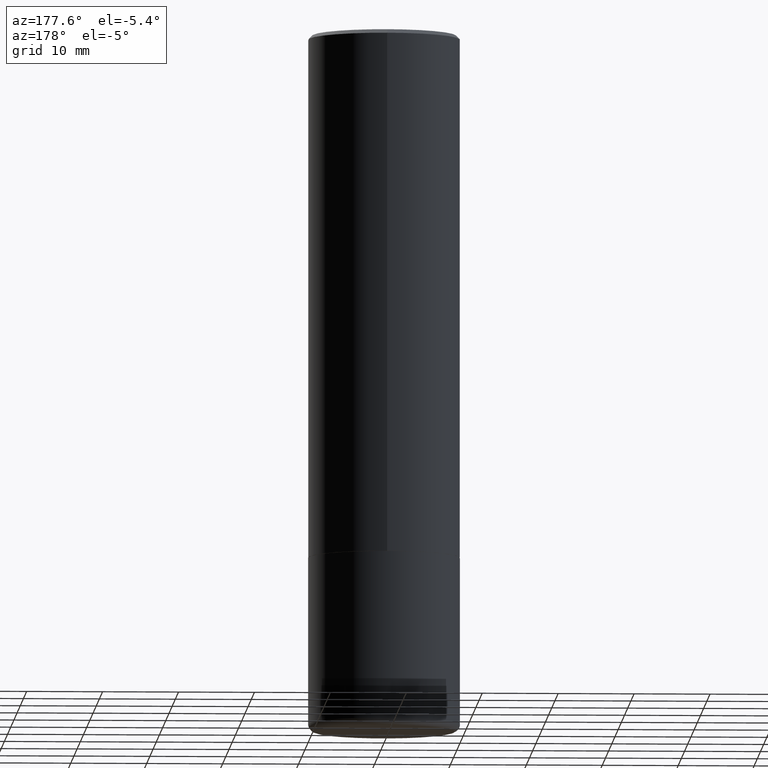
[diagram: clean part render]
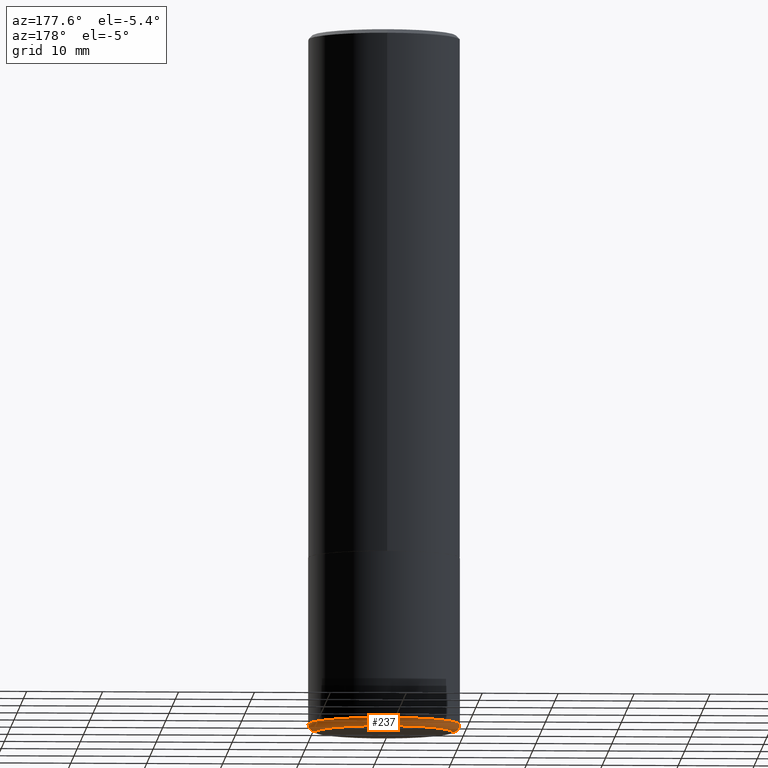
[diagram: same view with one face highlighted and labeled with its STEP entity id]
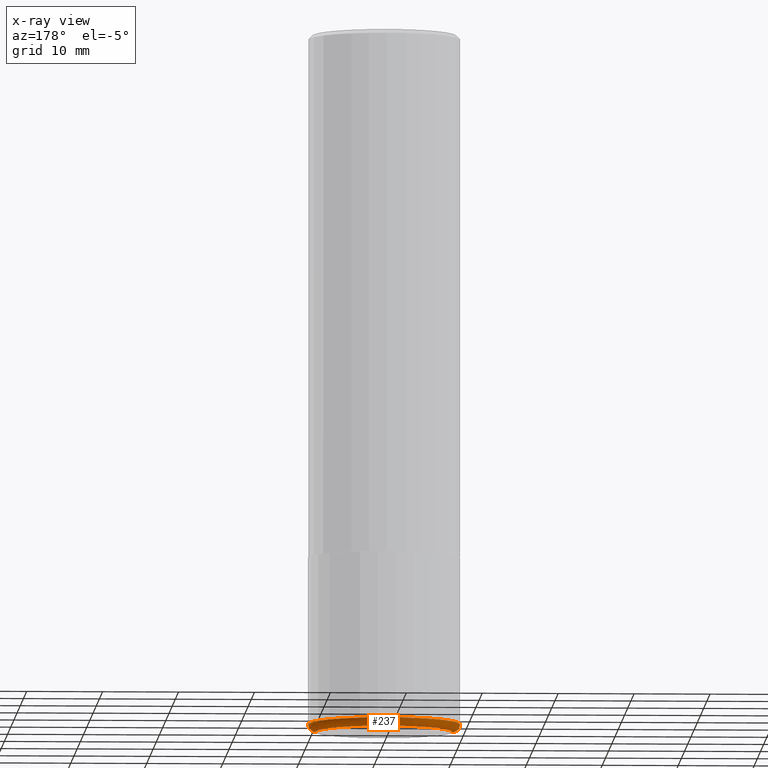
[diagram: x-ray of the same camera — body ghosted, the highlighted face saturated]
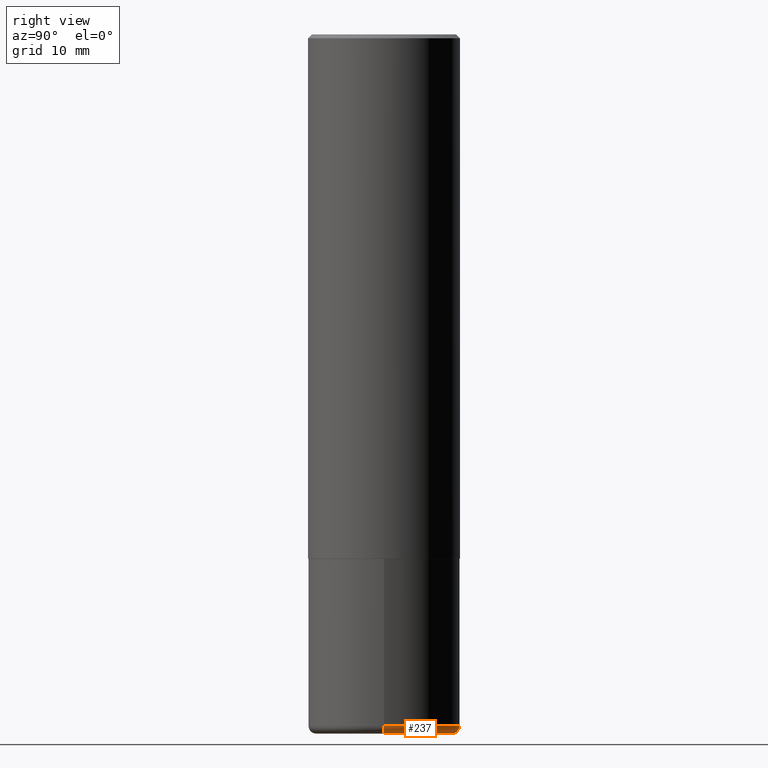
[diagram: same view with one face highlighted and labeled with its STEP entity id]
A machine part, auxiliary view. The second image highlights one B-rep face of the part: STEP entity #237.
The next image is the same camera in x-ray: the body ghosted, the highlighted face saturated — about 0% of this face is hidden behind the body in this view.
A second angle (right view) of the same face is appended — the face is thin or edge-on in the first view.
In plain terms, the highlighted toroidal blend (fillet) surface has major radius 8.9992 mm and minor (blend) radius 1.0008 mm.
Its self-contained STEP definition (entity closure, byte-faithful):
#14 = VERTEX_POINT ( 'NONE', #49 ) ;
#30 = VERTEX_POINT ( 'NONE', #234 ) ;
#36 = EDGE_LOOP ( 'NONE', ( #288, #74, #71, #347 ) ) ;
#49 = CARTESIAN_POINT ( 'NONE',  ( -0.3542999999999999483, -9.919933395171885327E-15, -3.621999999999999886 ) ) ;
#60 = TOROIDAL_SURFACE ( 'NONE', #197, 0.3543000000000000038, 0.03940000000000005997 ) ;
#63 = DIRECTION ( 'NONE',  ( 7.105427357601001859E-15, 1.000000000000000000, -3.491481338843145583E-15 ) ) ;
#66 = DIRECTION ( 'NONE',  ( -6.982962677686266711E-15, -1.000000000000000000, 3.491481338843145583E-15 ) ) ;
#71 = ORIENTED_EDGE ( 'NONE', *, *, #348, .F. ) ;
#74 = ORIENTED_EDGE ( 'NONE', *, *, #270, .T. ) ;
#91 = DIRECTION ( 'NONE',  ( -2.445468806185136597E-29, 3.491481338843145583E-15, 1.000000000000000000 ) ) ;
#92 = CIRCLE ( 'NONE', #370, 0.03940000000000005997 ) ;
#97 = DIRECTION ( 'NONE',  ( -2.445468806185136597E-29, 3.491481338843145583E-15, 1.000000000000000000 ) ) ;
#104 = VERTEX_POINT ( 'NONE', #178 ) ;
#118 = CIRCLE ( 'NONE', #136, 0.03940000000000005997 ) ;
#120 = CARTESIAN_POINT ( 'NONE',  ( 8.761136545038868759E-29, -1.250858104453945120E-14, -3.582599999999999785 ) ) ;
#124 = DIRECTION ( 'NONE',  ( 1.000000000000000000, -6.982962677686267499E-15, 0.000000000000000000 ) ) ;
#136 = AXIS2_PLACEMENT_3D ( 'NONE', #181, #66, #346 ) ;
#152 = DIRECTION ( 'NONE',  ( 1.000000000000000000, -6.982962677686268288E-15, 0.000000000000000000 ) ) ;
#178 = CARTESIAN_POINT ( 'NONE',  ( -0.3937000000000001054, -9.711174293851935623E-15, -3.582599999999999785 ) ) ;
#181 = CARTESIAN_POINT ( 'NONE',  ( 0.3543000000000000038, -1.498264472124369599E-14, -3.582599999999999785 ) ) ;
#186 = DIRECTION ( 'NONE',  ( 1.000000000000000000, -6.982962677686266711E-15, 4.883557194083112340E-29 ) ) ;
#187 = EDGE_CURVE ( 'NONE', #297, #30, #118, .T. ) ;
#188 = DIRECTION ( 'NONE',  ( -2.445468806185136597E-29, 3.491481338843145583E-15, 1.000000000000000000 ) ) ;
#197 = AXIS2_PLACEMENT_3D ( 'NONE', #120, #91, #186 ) ;
#213 = EDGE_CURVE ( 'NONE', #297, #14, #313, .T. ) ;
#234 = CARTESIAN_POINT ( 'NONE',  ( 0.3937000000000001054, -1.525777345074453441E-14, -3.582599999999999785 ) ) ;
#237 = ADVANCED_FACE ( 'NONE', ( #415 ), #60, .T. ) ;
#248 = AXIS2_PLACEMENT_3D ( 'NONE', #362, #97, #124 ) ;
#260 = CARTESIAN_POINT ( 'NONE',  ( 0.3542999999999999483, -1.512020908599411520E-14, -3.621999999999999886 ) ) ;
#270 = EDGE_CURVE ( 'NONE', #14, #104, #92, .T. ) ;
#288 = ORIENTED_EDGE ( 'NONE', *, *, #213, .T. ) ;
#297 = VERTEX_POINT ( 'NONE', #260 ) ;
#313 = CIRCLE ( 'NONE', #399, 0.3542999999999999483 ) ;
#331 = CIRCLE ( 'NONE', #248, 0.3937000000000000499 ) ;
#346 = DIRECTION ( 'NONE',  ( 1.000000000000000000, -6.982962677686267499E-15, 0.000000000000000000 ) ) ;
#347 = ORIENTED_EDGE ( 'NONE', *, *, #187, .F. ) ;
#348 = EDGE_CURVE ( 'NONE', #30, #104, #331, .T. ) ;
#362 = CARTESIAN_POINT ( 'NONE',  ( 8.761136545038868759E-29, -1.250858104453945120E-14, -3.582599999999999785 ) ) ;
#370 = AXIS2_PLACEMENT_3D ( 'NONE', #387, #63, #383 ) ;
#383 = DIRECTION ( 'NONE',  ( -1.000000000000000000, 7.105427357601014480E-15, 0.000000000000000000 ) ) ;
#387 = CARTESIAN_POINT ( 'NONE',  ( -0.3543000000000000038, -9.991128131741415818E-15, -3.582599999999999785 ) ) ;
#399 = AXIS2_PLACEMENT_3D ( 'NONE', #409, #188, #152 ) ;
#409 = CARTESIAN_POINT ( 'NONE',  ( 8.857488016002564476E-29, -1.264614540928987199E-14, -3.621999999999999886 ) ) ;
#415 = FACE_OUTER_BOUND ( 'NONE', #36, .T. ) ;